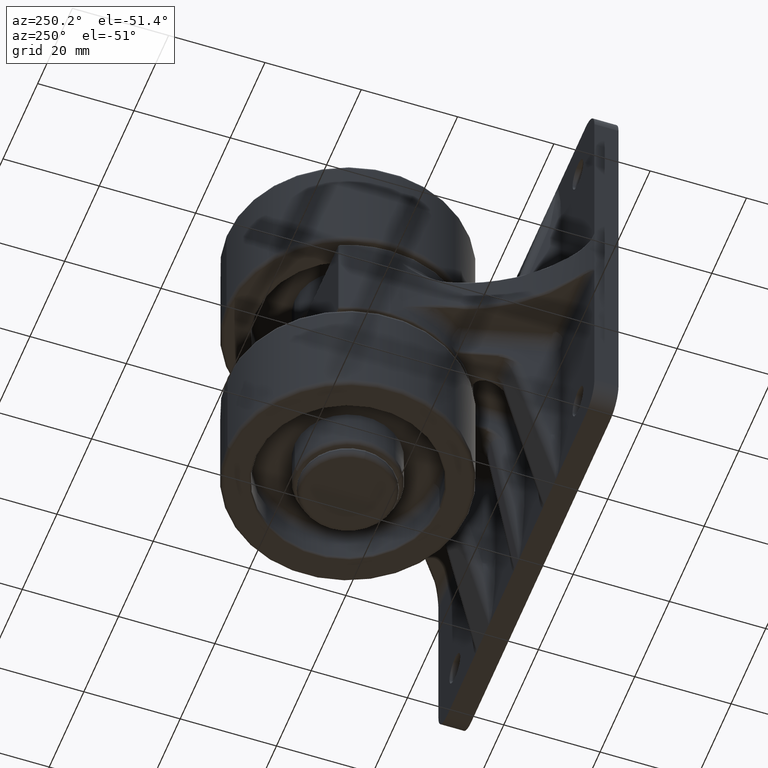
[diagram: clean part render]
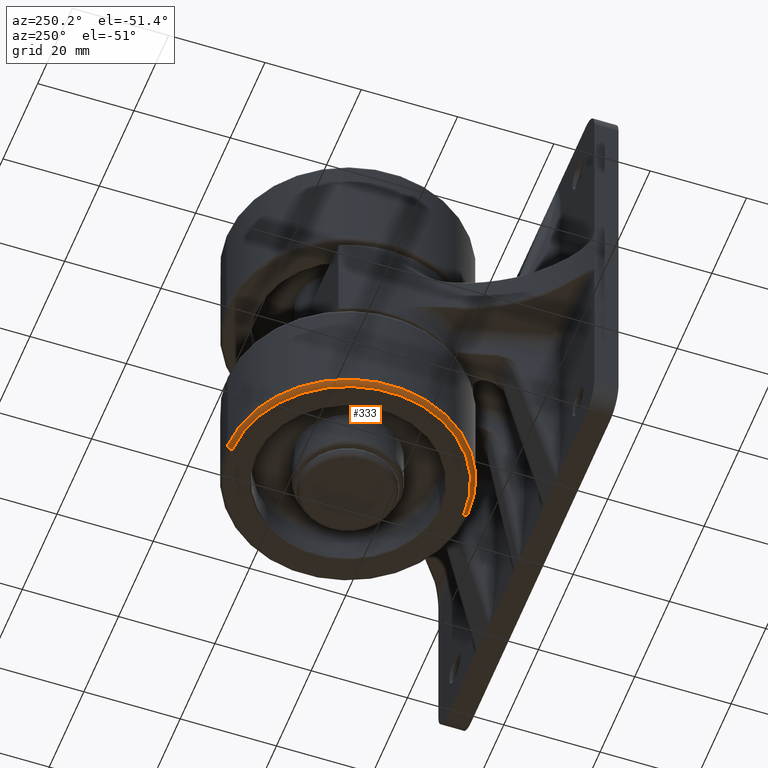
[diagram: same view with one face highlighted and labeled with its STEP entity id]
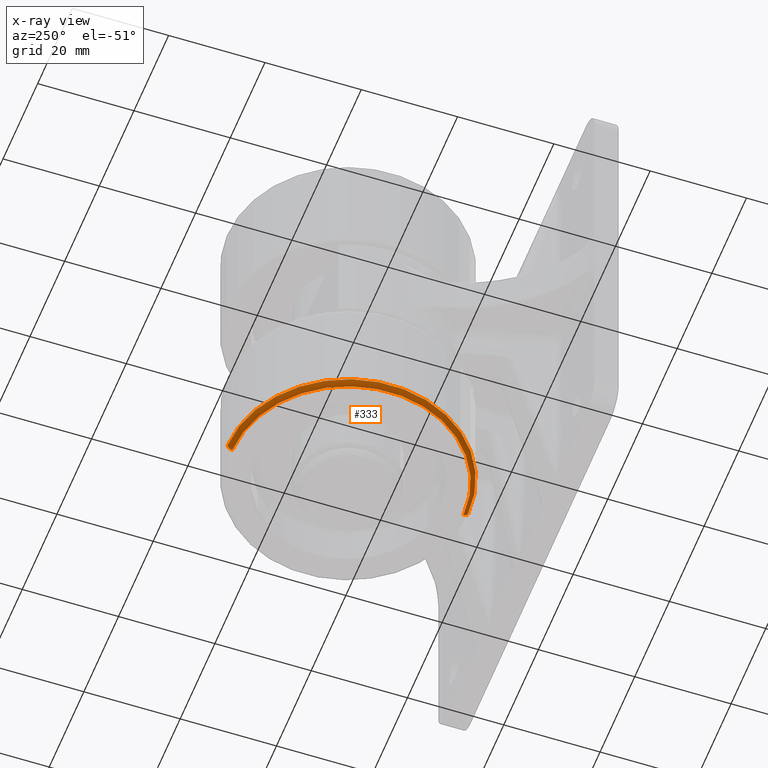
[diagram: x-ray of the same camera — body ghosted, the highlighted face saturated]
A machine part, auxiliary view. The second image highlights one B-rep face of the part: STEP entity #333.
The next image is the same camera in x-ray: the body ghosted, the highlighted face saturated — about 0% of this face is hidden behind the body in this view.
In plain terms, the highlighted toroidal blend (fillet) surface has major radius 24 mm and minor (blend) radius 1 mm.
Its self-contained STEP definition (entity closure, byte-faithful):
#333 = ADVANCED_FACE ( 'NONE', ( #8052 ), #3807, .T. ) ;
#839 = VERTEX_POINT ( 'NONE', #15533 ) ;
#1383 = ORIENTED_EDGE ( 'NONE', *, *, #3497, .F. ) ;
#1516 = ORIENTED_EDGE ( 'NONE', *, *, #9449, .T. ) ;
#1626 = ORIENTED_EDGE ( 'NONE', *, *, #15446, .F. ) ;
#2181 = DIRECTION ( 'NONE',  ( 0.0000000000000000000, 0.0000000000000000000, -1.000000000000000000 ) ) ;
#2707 = AXIS2_PLACEMENT_3D ( 'NONE', #5781, #15226, #7090 ) ;
#2891 = VERTEX_POINT ( 'NONE', #11807 ) ;
#2984 = AXIS2_PLACEMENT_3D ( 'NONE', #15336, #5879, #11101 ) ;
#3497 = EDGE_CURVE ( 'NONE', #839, #10543, #10980, .T. ) ;
#3544 = CIRCLE ( 'NONE', #13469, 1.000000000000000900 ) ;
#3807 = TOROIDAL_SURFACE ( 'NONE', #8363, 24.00000000000000000, 1.000000000000000000 ) ;
#4742 = CIRCLE ( 'NONE', #2707, 25.00000000000000000 ) ;
#5560 = EDGE_LOOP ( 'NONE', ( #1626, #12172, #1516, #1383 ) ) ;
#5781 = CARTESIAN_POINT ( 'NONE',  ( 33.00000000000005700, 0.0000000000000000000, -45.00000000000000000 ) ) ;
#5879 = DIRECTION ( 'NONE',  ( 1.000000000000000000, 0.0000000000000000000, 0.0000000000000000000 ) ) ;
#6103 = CARTESIAN_POINT ( 'NONE',  ( 33.00000000000005700, -24.00000000000000000, -45.00000000000000000 ) ) ;
#7090 = DIRECTION ( 'NONE',  ( 0.0000000000000000000, 1.000000000000000000, 0.0000000000000000000 ) ) ;
#7444 = DIRECTION ( 'NONE',  ( 0.0000000000000000000, -1.000000000000000000, 0.0000000000000000000 ) ) ;
#7458 = CARTESIAN_POINT ( 'NONE',  ( 33.00000000000005700, -25.00000000000000000, -45.00000000000000000 ) ) ;
#8052 = FACE_OUTER_BOUND ( 'NONE', #5560, .T. ) ;
#8363 = AXIS2_PLACEMENT_3D ( 'NONE', #16432, #16449, #10241 ) ;
#9449 = EDGE_CURVE ( 'NONE', #2891, #10543, #14440, .T. ) ;
#10059 = CARTESIAN_POINT ( 'NONE',  ( 33.00000000000005700, 24.00000000000000000, -45.00000000000000000 ) ) ;
#10241 = DIRECTION ( 'NONE',  ( 0.0000000000000000000, 1.000000000000000000, 0.0000000000000000000 ) ) ;
#10543 = VERTEX_POINT ( 'NONE', #13897 ) ;
#10686 = VERTEX_POINT ( 'NONE', #7458 ) ;
#10980 = CIRCLE ( 'NONE', #2984, 24.00000000000000000 ) ;
#11101 = DIRECTION ( 'NONE',  ( 0.0000000000000000000, 1.000000000000000000, 0.0000000000000000000 ) ) ;
#11438 = DIRECTION ( 'NONE',  ( -1.000000000000000000, 0.0000000000000000000, 0.0000000000000000000 ) ) ;
#11807 = CARTESIAN_POINT ( 'NONE',  ( 33.00000000000005700, 25.00000000000000000, -45.00000000000000000 ) ) ;
#12172 = ORIENTED_EDGE ( 'NONE', *, *, #14048, .F. ) ;
#13469 = AXIS2_PLACEMENT_3D ( 'NONE', #6103, #15576, #7444 ) ;
#13897 = CARTESIAN_POINT ( 'NONE',  ( 34.00000000000005700, 24.00000000000000000, -45.00000000000000000 ) ) ;
#14048 = EDGE_CURVE ( 'NONE', #2891, #10686, #4742, .T. ) ;
#14440 = CIRCLE ( 'NONE', #15948, 1.000000000000000900 ) ;
#15226 = DIRECTION ( 'NONE',  ( -1.000000000000000000, -0.0000000000000000000, -0.0000000000000000000 ) ) ;
#15336 = CARTESIAN_POINT ( 'NONE',  ( 34.00000000000005700, 0.0000000000000000000, -45.00000000000000000 ) ) ;
#15446 = EDGE_CURVE ( 'NONE', #10686, #839, #3544, .T. ) ;
#15533 = CARTESIAN_POINT ( 'NONE',  ( 34.00000000000005700, -24.00000000000000000, -45.00000000000000000 ) ) ;
#15576 = DIRECTION ( 'NONE',  ( -0.0000000000000000000, 1.224646799147353200E-016, 1.000000000000000000 ) ) ;
#15948 = AXIS2_PLACEMENT_3D ( 'NONE', #10059, #2181, #11438 ) ;
#16432 = CARTESIAN_POINT ( 'NONE',  ( 33.00000000000005700, 0.0000000000000000000, -45.00000000000000000 ) ) ;
#16449 = DIRECTION ( 'NONE',  ( 1.000000000000000000, 0.0000000000000000000, 0.0000000000000000000 ) ) ;